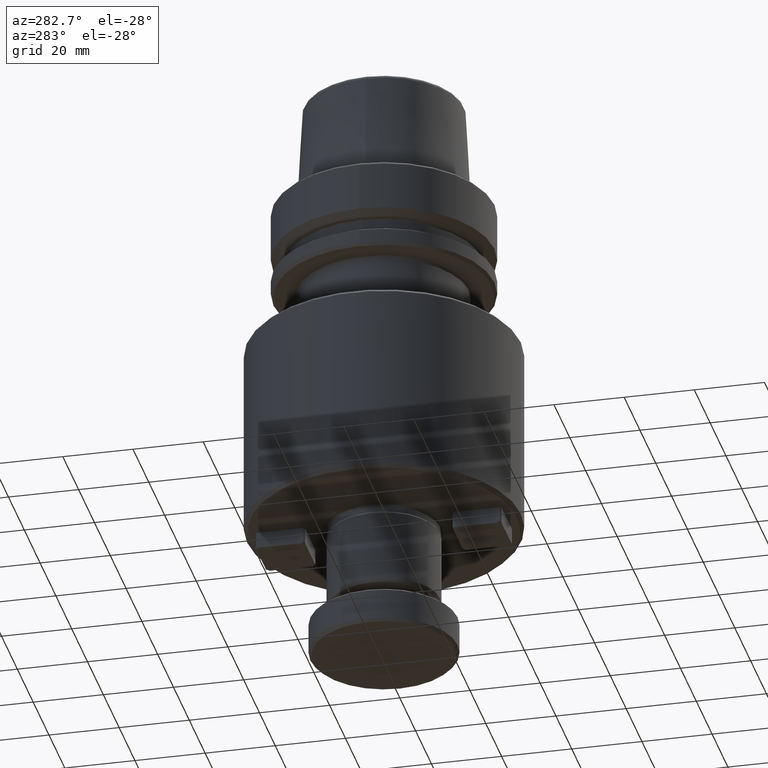
[diagram: clean part render]
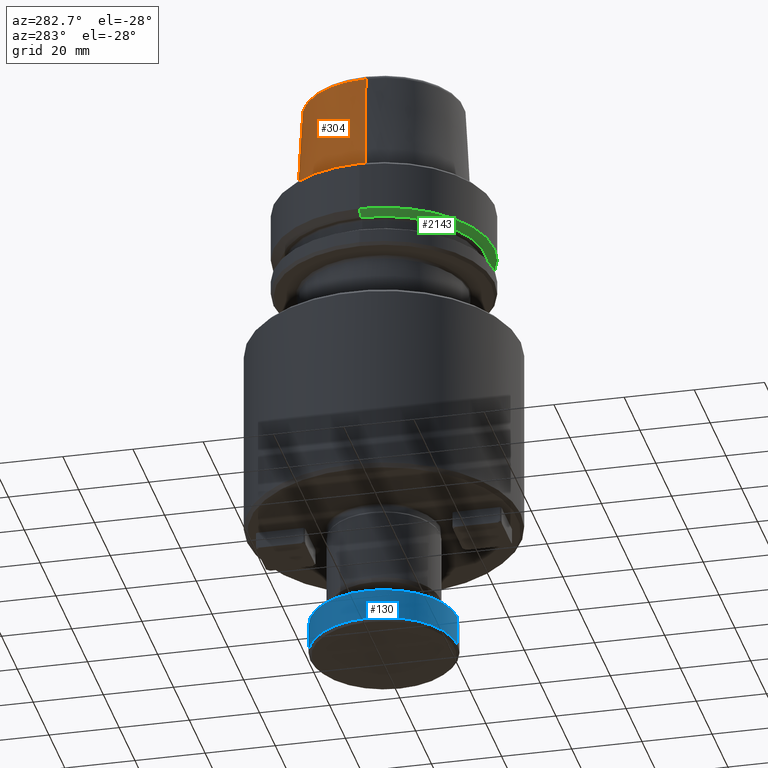
[diagram: same view with three faces highlighted in distinct colors, each labeled with its STEP entity id]
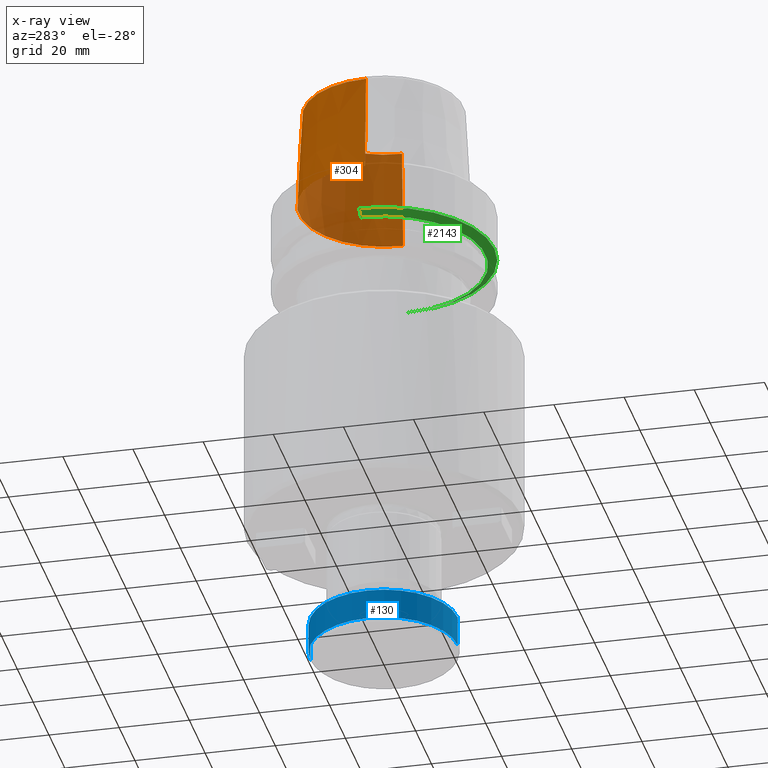
[diagram: x-ray of the same camera — body ghosted, the three highlighted faces saturated]
A machine part, auxiliary view with three faces highlighted in distinct colors.
The next image is the same camera in x-ray (body ghosted, the three faces saturated) — at least one of them is partly hidden behind the body in this view.
Their STEP definitions:

[orange] entity #304 — the highlighted conical surface has half-angle 2.868 deg.
#13 = VECTOR ( 'NONE', #1323, 1000.000000000000000 ) ;
#68 = DIRECTION ( 'NONE',  ( 1.000000000000000000, 0.0000000000000000000, 0.0000000000000000000 ) ) ;
#74 = DIRECTION ( 'NONE',  ( 0.05003740818623113300, 6.127815177289752600E-018, -0.9987473443178732600 ) ) ;
#83 = ORIENTED_EDGE ( 'NONE', *, *, #834, .T. ) ;
#207 = FACE_OUTER_BOUND ( 'NONE', #828, .T. ) ;
#263 = ORIENTED_EDGE ( 'NONE', *, *, #443, .T. ) ;
#304 = ADVANCED_FACE ( 'NONE', ( #207 ), #823, .T. ) ;
#330 = CARTESIAN_POINT ( 'NONE',  ( -22.77954767978208000, 0.0000000000000000000, 30.73657688124376000 ) ) ;
#443 = EDGE_CURVE ( 'NONE', #2899, #625, #3384, .T. ) ;
#487 = CIRCLE ( 'NONE', #2796, 22.77954767978208000 ) ;
#491 = EDGE_CURVE ( 'NONE', #3004, #1569, #487, .T. ) ;
#540 = DIRECTION ( 'NONE',  ( 0.0000000000000000000, 0.0000000000000000000, -1.000000000000000000 ) ) ;
#625 = VERTEX_POINT ( 'NONE', #3337 ) ;
#823 = CONICAL_SURFACE ( 'NONE', #3239, 24.19533121340911200, 0.05005831187521716400 ) ;
#828 = EDGE_LOOP ( 'NONE', ( #2970, #83, #263, #2847 ) ) ;
#834 = EDGE_CURVE ( 'NONE', #3004, #2899, #2697, .T. ) ;
#1153 = CARTESIAN_POINT ( 'NONE',  ( 0.0000000000000000000, 0.0000000000000000000, 30.73657688124376000 ) ) ;
#1323 = DIRECTION ( 'NONE',  ( -0.05003740818623113300, 0.0000000000000000000, -0.9987473443178732600 ) ) ;
#1424 = DIRECTION ( 'NONE',  ( 1.000000000000000000, 0.0000000000000000000, 0.0000000000000000000 ) ) ;
#1569 = VERTEX_POINT ( 'NONE', #330 ) ;
#1646 = CARTESIAN_POINT ( 'NONE',  ( 24.19533121340911200, 0.0000000000000000000, 2.477518396914346600 ) ) ;
#1660 = DIRECTION ( 'NONE',  ( -0.0000000000000000000, -0.0000000000000000000, 1.000000000000000000 ) ) ;
#2089 = VECTOR ( 'NONE', #74, 1000.000000000000000 ) ;
#2101 = AXIS2_PLACEMENT_3D ( 'NONE', #3226, #1660, #68 ) ;
#2315 = LINE ( 'NONE', #2918, #13 ) ;
#2697 = LINE ( 'NONE', #3237, #2089 ) ;
#2722 = EDGE_CURVE ( 'NONE', #1569, #625, #2315, .T. ) ;
#2796 = AXIS2_PLACEMENT_3D ( 'NONE', #1153, #3003, #1424 ) ;
#2847 = ORIENTED_EDGE ( 'NONE', *, *, #2722, .F. ) ;
#2899 = VERTEX_POINT ( 'NONE', #1646 ) ;
#2918 = CARTESIAN_POINT ( 'NONE',  ( -24.19533121340911200, 0.0000000000000000000, 2.477518396914346600 ) ) ;
#2920 = DIRECTION ( 'NONE',  ( -1.000000000000000000, 0.0000000000000000000, 0.0000000000000000000 ) ) ;
#2958 = CARTESIAN_POINT ( 'NONE',  ( 0.0000000000000000000, 0.0000000000000000000, 2.477518396914346600 ) ) ;
#2970 = ORIENTED_EDGE ( 'NONE', *, *, #491, .F. ) ;
#3003 = DIRECTION ( 'NONE',  ( -0.0000000000000000000, -0.0000000000000000000, 1.000000000000000000 ) ) ;
#3004 = VERTEX_POINT ( 'NONE', #3262 ) ;
#3226 = CARTESIAN_POINT ( 'NONE',  ( 0.0000000000000000000, 0.0000000000000000000, 2.477518396914346600 ) ) ;
#3237 = CARTESIAN_POINT ( 'NONE',  ( 24.19533121340911200, 2.963073492481151400E-015, 2.477518396914346600 ) ) ;
#3239 = AXIS2_PLACEMENT_3D ( 'NONE', #2958, #540, #2920 ) ;
#3262 = CARTESIAN_POINT ( 'NONE',  ( 22.77954767978208000, 2.876381753844058100E-015, 30.73657688124376000 ) ) ;
#3337 = CARTESIAN_POINT ( 'NONE',  ( -24.19533121340911200, 2.963073492481151400E-015, 2.477518396914346600 ) ) ;
#3384 = CIRCLE ( 'NONE', #2101, 24.19533121340911200 ) ;

[blue] entity #130 — the highlighted cylindrical surface (partial cylindrical patch) has radius 21 mm, axis along (0, -0, 1).
#81 = DIRECTION ( 'NONE',  ( 0.0000000000000000000, 1.000000000000000000, 0.0000000000000000000 ) ) ;
#130 = ADVANCED_FACE ( 'NONE', ( #1739 ), #389, .T. ) ;
#283 = CARTESIAN_POINT ( 'NONE',  ( 0.0000000000000000000, -1.122997846055575100E-015, -138.2000000000000500 ) ) ;
#389 = CYLINDRICAL_SURFACE ( 'NONE', #1657, 21.00000000000000000 ) ;
#411 = CARTESIAN_POINT ( 'NONE',  ( 0.0000000000000000000, -21.00000000000000400, -14.76692465335438500 ) ) ;
#432 = DIRECTION ( 'NONE',  ( 0.0000000000000000000, -1.181691576284671000E-017, 1.000000000000000000 ) ) ;
#475 = EDGE_CURVE ( 'NONE', #798, #2951, #2695, .T. ) ;
#542 = DIRECTION ( 'NONE',  ( 0.0000000000000000000, -1.000000000000000000, 0.0000000000000000000 ) ) ;
#798 = VERTEX_POINT ( 'NONE', #2189 ) ;
#854 = VERTEX_POINT ( 'NONE', #1136 ) ;
#973 = DIRECTION ( 'NONE',  ( 0.0000000000000000000, -1.181691576284671000E-017, 1.000000000000000000 ) ) ;
#1082 = DIRECTION ( 'NONE',  ( -0.0000000000000000000, -1.181691576284676500E-017, 1.000000000000000000 ) ) ;
#1136 = CARTESIAN_POINT ( 'NONE',  ( -21.00000000000000400, 8.370348022326351600E-016, -138.2000000000000500 ) ) ;
#1200 = AXIS2_PLACEMENT_3D ( 'NONE', #2672, #1082, #2939 ) ;
#1214 = LINE ( 'NONE', #1825, #2463 ) ;
#1239 = EDGE_LOOP ( 'NONE', ( #2892, #1779, #3104, #1887, #1310, #3254 ) ) ;
#1310 = ORIENTED_EDGE ( 'NONE', *, *, #475, .F. ) ;
#1394 = EDGE_CURVE ( 'NONE', #1615, #798, #3274, .T. ) ;
#1550 = VERTEX_POINT ( 'NONE', #3217 ) ;
#1615 = VERTEX_POINT ( 'NONE', #2265 ) ;
#1657 = AXIS2_PLACEMENT_3D ( 'NONE', #1780, #432, #2312 ) ;
#1675 = DIRECTION ( 'NONE',  ( -0.0000000000000000000, -1.181691576284676500E-017, 1.000000000000000000 ) ) ;
#1739 = FACE_OUTER_BOUND ( 'NONE', #1239, .T. ) ;
#1770 = AXIS2_PLACEMENT_3D ( 'NONE', #2568, #973, #2829 ) ;
#1779 = ORIENTED_EDGE ( 'NONE', *, *, #1844, .T. ) ;
#1780 = CARTESIAN_POINT ( 'NONE',  ( 0.0000000000000000000, -2.581596099775997700E-015, -14.76692465335438500 ) ) ;
#1814 = CIRCLE ( 'NONE', #2708, 21.00000000000000000 ) ;
#1825 = CARTESIAN_POINT ( 'NONE',  ( 2.571758278209441700E-015, 20.99999999999999600, -14.76692465335438500 ) ) ;
#1838 = CIRCLE ( 'NONE', #1770, 21.00000000000000000 ) ;
#1844 = EDGE_CURVE ( 'NONE', #1550, #854, #1814, .T. ) ;
#1864 = DIRECTION ( 'NONE',  ( 0.0000000000000000000, -1.181691576284671000E-017, 1.000000000000000000 ) ) ;
#1887 = ORIENTED_EDGE ( 'NONE', *, *, #2121, .T. ) ;
#2121 = EDGE_CURVE ( 'NONE', #2583, #2951, #2694, .T. ) ;
#2152 = DIRECTION ( 'NONE',  ( 0.0000000000000000000, -1.181691576284671000E-017, 1.000000000000000000 ) ) ;
#2155 = EDGE_CURVE ( 'NONE', #854, #2583, #1838, .T. ) ;
#2189 = CARTESIAN_POINT ( 'NONE',  ( -21.00000000000000400, -1.734723475976807100E-015, -129.5000000000000000 ) ) ;
#2265 = CARTESIAN_POINT ( 'NONE',  ( 2.571758278209442100E-015, 21.00000000000000000, -129.5000000000000000 ) ) ;
#2312 = DIRECTION ( 'NONE',  ( 0.0000000000000000000, -1.000000000000000000, 0.0000000000000000000 ) ) ;
#2447 = AXIS2_PLACEMENT_3D ( 'NONE', #3243, #1675, #81 ) ;
#2463 = VECTOR ( 'NONE', #1864, 1000.000000000000000 ) ;
#2568 = CARTESIAN_POINT ( 'NONE',  ( 0.0000000000000000000, -1.122997846055575100E-015, -138.2000000000000500 ) ) ;
#2583 = VERTEX_POINT ( 'NONE', #3149 ) ;
#2672 = CARTESIAN_POINT ( 'NONE',  ( 0.0000000000000000000, -1.225805013192342000E-015, -129.5000000000000000 ) ) ;
#2694 = LINE ( 'NONE', #411, #3310 ) ;
#2695 = CIRCLE ( 'NONE', #2447, 20.99999999999999600 ) ;
#2708 = AXIS2_PLACEMENT_3D ( 'NONE', #283, #2152, #542 ) ;
#2829 = DIRECTION ( 'NONE',  ( 0.0000000000000000000, -1.000000000000000000, 0.0000000000000000000 ) ) ;
#2892 = ORIENTED_EDGE ( 'NONE', *, *, #3245, .F. ) ;
#2939 = DIRECTION ( 'NONE',  ( 0.0000000000000000000, 1.000000000000000000, 0.0000000000000000000 ) ) ;
#2951 = VERTEX_POINT ( 'NONE', #3255 ) ;
#3063 = DIRECTION ( 'NONE',  ( 0.0000000000000000000, -1.181691576284671000E-017, 1.000000000000000000 ) ) ;
#3104 = ORIENTED_EDGE ( 'NONE', *, *, #2155, .T. ) ;
#3149 = CARTESIAN_POINT ( 'NONE',  ( 0.0000000000000000000, -21.00000000000000000, -138.2000000000000500 ) ) ;
#3217 = CARTESIAN_POINT ( 'NONE',  ( 2.571758278209441700E-015, 21.00000000000000000, -138.2000000000000500 ) ) ;
#3243 = CARTESIAN_POINT ( 'NONE',  ( 0.0000000000000000000, -1.225805013192342000E-015, -129.5000000000000000 ) ) ;
#3245 = EDGE_CURVE ( 'NONE', #1550, #1615, #1214, .T. ) ;
#3254 = ORIENTED_EDGE ( 'NONE', *, *, #1394, .F. ) ;
#3255 = CARTESIAN_POINT ( 'NONE',  ( 0.0000000000000000000, -21.00000000000000000, -129.5000000000000000 ) ) ;
#3274 = CIRCLE ( 'NONE', #1200, 20.99999999999999600 ) ;
#3310 = VECTOR ( 'NONE', #3063, 1000.000000000000000 ) ;

[green] entity #2143 — the highlighted conical surface has half-angle 60 deg.
#159 = EDGE_CURVE ( 'NONE', #1663, #2407, #1330, .T. ) ;
#208 = VECTOR ( 'NONE', #2585, 1000.000000000000000 ) ;
#229 = ORIENTED_EDGE ( 'NONE', *, *, #731, .T. ) ;
#407 = CONICAL_SURFACE ( 'NONE', #2120, 28.94089653438093300, 1.047197551196599200 ) ;
#489 = CIRCLE ( 'NONE', #1873, 31.50000000000152800 ) ;
#665 = CARTESIAN_POINT ( 'NONE',  ( -28.94089653438093300, 3.700937523921391500E-015, -16.12346800859863900 ) ) ;
#706 = LINE ( 'NONE', #1912, #2747 ) ;
#731 = EDGE_CURVE ( 'NONE', #2407, #1590, #2262, .T. ) ;
#786 = ORIENTED_EDGE ( 'NONE', *, *, #159, .T. ) ;
#791 = DIRECTION ( 'NONE',  ( -0.0000000000000000000, -0.0000000000000000000, 1.000000000000000000 ) ) ;
#916 = EDGE_CURVE ( 'NONE', #2491, #1590, #489, .T. ) ;
#986 = CARTESIAN_POINT ( 'NONE',  ( 28.94089653438093300, 0.0000000000000000000, -16.12346800859863900 ) ) ;
#1149 = CARTESIAN_POINT ( 'NONE',  ( 0.0000000000000000000, 0.0000000000000000000, -14.64596893383848700 ) ) ;
#1226 = ORIENTED_EDGE ( 'NONE', *, *, #3406, .F. ) ;
#1231 = DIRECTION ( 'NONE',  ( 1.000000000000000000, 0.0000000000000000000, 0.0000000000000000000 ) ) ;
#1293 = AXIS2_PLACEMENT_3D ( 'NONE', #2394, #791, #2647 ) ;
#1330 = CIRCLE ( 'NONE', #1293, 28.94089653438093300 ) ;
#1419 = DIRECTION ( 'NONE',  ( 1.000000000000000000, 0.0000000000000000000, 0.0000000000000000000 ) ) ;
#1562 = EDGE_LOOP ( 'NONE', ( #1226, #786, #229, #1881 ) ) ;
#1590 = VERTEX_POINT ( 'NONE', #1951 ) ;
#1648 = DIRECTION ( 'NONE',  ( -0.8660254037844393700, 1.060575238724907800E-016, 0.4999999999999987200 ) ) ;
#1663 = VERTEX_POINT ( 'NONE', #665 ) ;
#1873 = AXIS2_PLACEMENT_3D ( 'NONE', #1149, #2998, #1419 ) ;
#1881 = ORIENTED_EDGE ( 'NONE', *, *, #916, .F. ) ;
#1912 = CARTESIAN_POINT ( 'NONE',  ( -28.94089653438093300, 3.544237630528433700E-015, -16.12346800859863900 ) ) ;
#1919 = FACE_OUTER_BOUND ( 'NONE', #1562, .T. ) ;
#1951 = CARTESIAN_POINT ( 'NONE',  ( 31.50000000000152800, 0.0000000000000000000, -14.64596893383848700 ) ) ;
#2120 = AXIS2_PLACEMENT_3D ( 'NONE', #3074, #3338, #1231 ) ;
#2143 = ADVANCED_FACE ( 'NONE', ( #1919 ), #407, .T. ) ;
#2262 = LINE ( 'NONE', #986, #208 ) ;
#2394 = CARTESIAN_POINT ( 'NONE',  ( 0.0000000000000000000, 0.0000000000000000000, -16.12346800859863900 ) ) ;
#2407 = VERTEX_POINT ( 'NONE', #3335 ) ;
#2491 = VERTEX_POINT ( 'NONE', #3374 ) ;
#2585 = DIRECTION ( 'NONE',  ( 0.8660254037844393700, 0.0000000000000000000, 0.4999999999999987200 ) ) ;
#2647 = DIRECTION ( 'NONE',  ( 1.000000000000000000, 0.0000000000000000000, 0.0000000000000000000 ) ) ;
#2747 = VECTOR ( 'NONE', #1648, 1000.000000000000000 ) ;
#2998 = DIRECTION ( 'NONE',  ( -0.0000000000000000000, -0.0000000000000000000, 1.000000000000000000 ) ) ;
#3074 = CARTESIAN_POINT ( 'NONE',  ( 0.0000000000000000000, 0.0000000000000000000, -16.12346800859863900 ) ) ;
#3335 = CARTESIAN_POINT ( 'NONE',  ( 28.94089653438093300, 0.0000000000000000000, -16.12346800859863900 ) ) ;
#3338 = DIRECTION ( 'NONE',  ( -0.0000000000000000000, -0.0000000000000000000, 1.000000000000000000 ) ) ;
#3374 = CARTESIAN_POINT ( 'NONE',  ( -31.50000000000152800, 3.857637417314349600E-015, -14.64596893383848700 ) ) ;
#3406 = EDGE_CURVE ( 'NONE', #1663, #2491, #706, .T. ) ;